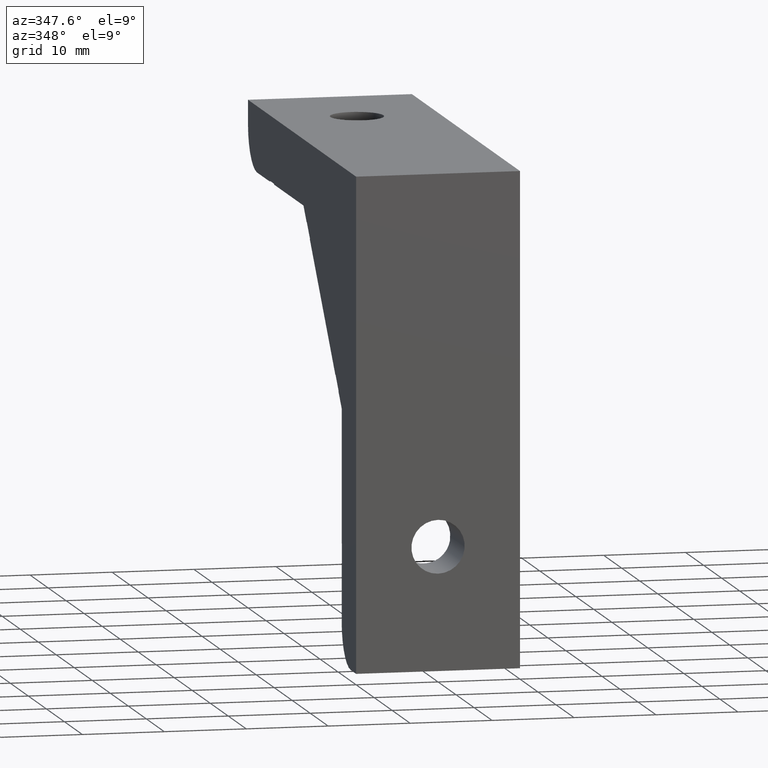
[diagram: clean part render]
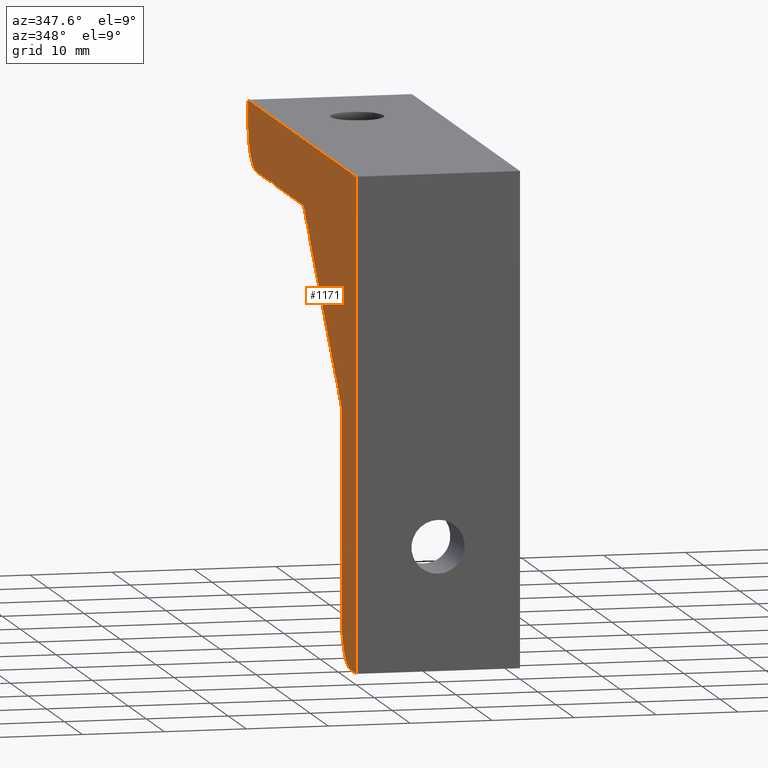
[diagram: same view with one face highlighted and labeled with its STEP entity id]
A machine part, auxiliary view. The second image highlights one B-rep face of the part: STEP entity #1171.
In plain terms, the highlighted planar face has unit normal (-1, 0, 0).
Its self-contained STEP definition (entity closure, byte-faithful):
#7 = CARTESIAN_POINT ( 'NONE',  ( 0.0000000000000000000, 9.732411614000000100, -27.41008114399999600 ) ) ;
#8 = DIRECTION ( 'NONE',  ( 0.0000000000000000000, 0.7071067811865735500, -0.7071067811865214800 ) ) ;
#29 = PLANE ( 'NONE',  #771 ) ;
#30 = CARTESIAN_POINT ( 'NONE',  ( 0.0000000000000000000, 0.0000000000000000000, -60.00000000000000000 ) ) ;
#31 = DIRECTION ( 'NONE',  ( -1.000000000000000000, 0.0000000000000000000, 0.0000000000000000000 ) ) ;
#32 = DIRECTION ( 'NONE',  ( 0.0000000000000000000, 0.0000000000000000000, 1.000000000000000000 ) ) ;
#127 = VECTOR ( 'NONE', #8, 1000.000000000000000 ) ;
#138 = FACE_OUTER_BOUND ( 'NONE', #541, .T. ) ;
#238 = CARTESIAN_POINT ( 'NONE',  ( 0.0000000000000000000, 7.950000000000000200, -45.50000000000000000 ) ) ;
#239 = DIRECTION ( 'NONE',  ( -0.0000000000000000000, -1.000000000000000000, -0.0000000000000000000 ) ) ;
#249 = CARTESIAN_POINT ( 'NONE',  ( 0.0000000000000000000, 30.00000000000000000, -7.999999979999996600 ) ) ;
#250 = DIRECTION ( 'NONE',  ( -0.0000000000000000000, -1.000000000000000000, -0.0000000000000000000 ) ) ;
#272 = CARTESIAN_POINT ( 'NONE',  ( 0.0000000000000000000, 27.41008114399999600, -9.732411614000000100 ) ) ;
#273 = DIRECTION ( 'NONE',  ( 0.0000000000000000000, -0.7071067811865214800, 0.7071067811865735500 ) ) ;
#280 = CARTESIAN_POINT ( 'NONE',  ( 0.0000000000000000000, 7.900000019999999300, -30.00000000000000000 ) ) ;
#281 = DIRECTION ( 'NONE',  ( -0.0000000000000000000, -0.0000000000000000000, -1.000000000000000000 ) ) ;
#286 = CARTESIAN_POINT ( 'NONE',  ( 0.0000000000000000000, 7.999999980000001900, -30.00000000000000000 ) ) ;
#287 = DIRECTION ( 'NONE',  ( -0.0000000000000000000, -0.0000000000000000000, -1.000000000000000000 ) ) ;
#290 = CARTESIAN_POINT ( 'NONE',  ( 3.469446951953614200E-015, 2.999999999999993300, -55.00000000000000000 ) ) ;
#291 = DIRECTION ( 'NONE',  ( -1.000000000000000000, -3.469446951953616700E-016, -0.0000000000000000000 ) ) ;
#292 = DIRECTION ( 'NONE',  ( 3.469446951953616200E-016, -1.000000000000000000, 0.0000000000000000000 ) ) ;
#300 = CARTESIAN_POINT ( 'NONE',  ( 0.0000000000000000000, 30.00000000000000000, -60.00000000000000000 ) ) ;
#301 = DIRECTION ( 'NONE',  ( -0.0000000000000000000, -1.000000000000000000, -0.0000000000000000000 ) ) ;
#304 = CARTESIAN_POINT ( 'NONE',  ( 3.469446951953614200E-015, 54.99999999999999300, -3.000000000000000000 ) ) ;
#305 = DIRECTION ( 'NONE',  ( -1.000000000000000000, -3.469446951953613700E-016, -0.0000000000000000000 ) ) ;
#306 = DIRECTION ( 'NONE',  ( 3.469446951953616200E-016, -1.000000000000000000, 0.0000000000000000000 ) ) ;
#312 = CARTESIAN_POINT ( 'NONE',  ( 0.0000000000000000000, 27.37472579999999700, -9.697056300000007000 ) ) ;
#313 = DIRECTION ( 'NONE',  ( 0.0000000000000000000, -0.7071067811865495700, -0.7071067811865454600 ) ) ;
#318 = CARTESIAN_POINT ( 'NONE',  ( 0.0000000000000000000, 25.67766954000000000, -11.53553387999999000 ) ) ;
#319 = DIRECTION ( 'NONE',  ( 0.0000000000000000000, -0.7071067811865473500, -0.7071067811865477900 ) ) ;
#320 = CARTESIAN_POINT ( 'NONE',  ( 0.0000000000000000000, 11.46482322000000100, -25.60695888000000400 ) ) ;
#321 = DIRECTION ( 'NONE',  ( 0.0000000000000000000, -0.7071067811865482400, -0.7071067811865469100 ) ) ;
#332 = CARTESIAN_POINT ( 'NONE',  ( 0.0000000000000000000, 7.950000000000000200, -48.00000000000000000 ) ) ;
#333 = DIRECTION ( 'NONE',  ( 0.0000000000000000000, 1.000000000000000000, 0.0000000000000000000 ) ) ;
#338 = CARTESIAN_POINT ( 'NONE',  ( 0.0000000000000000000, 25.64231419100000100, -11.50017856700000100 ) ) ;
#339 = DIRECTION ( 'NONE',  ( 0.0000000000000000000, 0.7071067811865128200, -0.7071067811865822100 ) ) ;
#346 = CARTESIAN_POINT ( 'NONE',  ( 0.0000000000000000000, 11.50017856700000100, -25.64231419100000100 ) ) ;
#347 = DIRECTION ( 'NONE',  ( 0.0000000000000000000, -0.7071067811865822100, 0.7071067811865128200 ) ) ;
#350 = CARTESIAN_POINT ( 'NONE',  ( 0.0000000000000000000, 60.00000000000000000, -30.00000000000000000 ) ) ;
#351 = DIRECTION ( 'NONE',  ( -0.0000000000000000000, -0.0000000000000000000, -1.000000000000000000 ) ) ;
#360 = CARTESIAN_POINT ( 'NONE',  ( 0.0000000000000000000, 0.0000000000000000000, -30.00000000000000000 ) ) ;
#361 = DIRECTION ( 'NONE',  ( 0.0000000000000000000, 0.0000000000000000000, 1.000000000000000000 ) ) ;
#366 = CARTESIAN_POINT ( 'NONE',  ( 0.0000000000000000000, 29.21320344000000400, -7.999999979999998300 ) ) ;
#367 = DIRECTION ( 'NONE',  ( 0.0000000000000000000, -0.7071067811865474600, -0.7071067811865474600 ) ) ;
#382 = CARTESIAN_POINT ( 'NONE',  ( 0.0000000000000000000, 30.00000000000000000, 0.0000000000000000000 ) ) ;
#383 = DIRECTION ( 'NONE',  ( 0.0000000000000000000, 1.000000000000000000, 0.0000000000000000000 ) ) ;
#384 = CARTESIAN_POINT ( 'NONE',  ( 0.0000000000000000000, 48.00000000000000000, -7.950000000000000200 ) ) ;
#385 = DIRECTION ( 'NONE',  ( 0.0000000000000000000, 0.0000000000000000000, 1.000000000000000000 ) ) ;
#386 = CARTESIAN_POINT ( 'NONE',  ( 0.0000000000000000000, 46.75000000000000000, -7.900000000000000400 ) ) ;
#387 = DIRECTION ( 'NONE',  ( -0.0000000000000000000, -1.000000000000000000, -0.0000000000000000000 ) ) ;
#388 = CARTESIAN_POINT ( 'NONE',  ( 0.0000000000000000000, 45.50000000000000000, -7.950000000000000200 ) ) ;
#389 = DIRECTION ( 'NONE',  ( 0.0000000000000000000, 0.0000000000000000000, -1.000000000000000000 ) ) ;
#390 = CARTESIAN_POINT ( 'NONE',  ( 0.0000000000000000000, 37.35660171799999300, -8.000000000000000000 ) ) ;
#391 = DIRECTION ( 'NONE',  ( 0.0000000000000000000, -1.000000000000000000, 0.0000000000000000000 ) ) ;
#410 = CARTESIAN_POINT ( 'NONE',  ( 0.0000000000000000000, 9.767766960000001200, -27.44543646000000700 ) ) ;
#411 = DIRECTION ( 'NONE',  ( 0.0000000000000000000, -0.7071067811865500200, -0.7071067811865451300 ) ) ;
#416 = CARTESIAN_POINT ( 'NONE',  ( 0.0000000000000000000, 7.999999980000001900, -30.00000000000000000 ) ) ;
#417 = DIRECTION ( 'NONE',  ( -0.0000000000000000000, -0.0000000000000000000, -1.000000000000000000 ) ) ;
#422 = CARTESIAN_POINT ( 'NONE',  ( 0.0000000000000000000, 29.21320342800000300, -8.000000000000000000 ) ) ;
#423 = CARTESIAN_POINT ( 'NONE',  ( 0.0000000000000000000, 7.999999987999999900, -29.21320343599999700 ) ) ;
#426 = CARTESIAN_POINT ( 'NONE',  ( 0.0000000000000000000, 9.767766949000003900, -27.44543647899999400 ) ) ;
#427 = CARTESIAN_POINT ( 'NONE',  ( 0.0000000000000000000, 11.53553390199999900, -25.67766952599999900 ) ) ;
#428 = CARTESIAN_POINT ( 'NONE',  ( 0.0000000000000000000, 7.999999993333334600, -45.50000000000000700 ) ) ;
#430 = CARTESIAN_POINT ( 'NONE',  ( 0.0000000000000000000, 0.0000000000000000000, -60.00000000000000000 ) ) ;
#436 = CARTESIAN_POINT ( 'NONE',  ( 0.0000000000000000000, 45.50000000000000700, -7.900000000000000400 ) ) ;
#438 = CARTESIAN_POINT ( 'NONE',  ( 0.0000000000000000000, 48.00000000000000700, -7.900000000000000400 ) ) ;
#440 = CARTESIAN_POINT ( 'NONE',  ( 0.0000000000000000000, 11.46482323300000100, -25.60695885700000600 ) ) ;
#443 = CARTESIAN_POINT ( 'NONE',  ( 0.0000000000000000000, 60.00000000000000000, 0.0000000000000000000 ) ) ;
#456 = CARTESIAN_POINT ( 'NONE',  ( 0.0000000000000000000, 27.37472581000000100, -9.697056280000001700 ) ) ;
#457 = CARTESIAN_POINT ( 'NONE',  ( 8.673617379884035500E-016, 60.00000000000000000, -3.000000000000000000 ) ) ;
#458 = CARTESIAN_POINT ( 'NONE',  ( 3.469446951953614200E-015, 54.99999999999999300, -7.999999989999999200 ) ) ;
#462 = CARTESIAN_POINT ( 'NONE',  ( 0.0000000000000000000, 25.67766952599999500, -11.53553390199999900 ) ) ;
#465 = CARTESIAN_POINT ( 'NONE',  ( 0.0000000000000000000, 7.900000006666666700, -45.49999999777778500 ) ) ;
#467 = CARTESIAN_POINT ( 'NONE',  ( 1.734723479446252100E-015, 7.999999990000000900, -55.00000000051275600 ) ) ;
#472 = CARTESIAN_POINT ( 'NONE',  ( 0.0000000000000000000, 7.999999993333334600, -48.00000000000000700 ) ) ;
#473 = CARTESIAN_POINT ( 'NONE',  ( 0.0000000000000000000, 9.697056280000001700, -27.37472581000000100 ) ) ;
#478 = CARTESIAN_POINT ( 'NONE',  ( 0.0000000000000000000, 27.44543647899999400, -9.767766949000003900 ) ) ;
#480 = CARTESIAN_POINT ( 'NONE',  ( 0.0000000000000000000, 0.0000000000000000000, 0.0000000000000000000 ) ) ;
#481 = CARTESIAN_POINT ( 'NONE',  ( 0.0000000000000000000, 45.50000000000000700, -8.000000000000000000 ) ) ;
#482 = CARTESIAN_POINT ( 'NONE',  ( 0.0000000000000000000, 7.900000006666666700, -48.00000000000000700 ) ) ;
#484 = CARTESIAN_POINT ( 'NONE',  ( 0.0000000000000000000, 25.60695885700000200, -11.46482323299999700 ) ) ;
#488 = CARTESIAN_POINT ( 'NONE',  ( 1.734723475976807100E-015, 2.999999999999996400, -60.00000000000000000 ) ) ;
#492 = CARTESIAN_POINT ( 'NONE',  ( 0.0000000000000000000, 48.00000000000000700, -7.999999993333332800 ) ) ;
#541 = EDGE_LOOP ( 'NONE', ( #570, #572, #573, #574, #576, #577, #578, #579, #580, #591, #590, #592, #593, #594, #595, #596, #597, #598, #599, #600, #601, #602, #603, #687, #686 ) ) ;
#570 = ORIENTED_EDGE ( 'NONE', *, *, #856, .T. ) ;
#572 = ORIENTED_EDGE ( 'NONE', *, *, #859, .T. ) ;
#573 = ORIENTED_EDGE ( 'NONE', *, *, #715, .T. ) ;
#574 = ORIENTED_EDGE ( 'NONE', *, *, #794, .T. ) ;
#576 = ORIENTED_EDGE ( 'NONE', *, *, #818, .T. ) ;
#577 = ORIENTED_EDGE ( 'NONE', *, *, #797, .T. ) ;
#578 = ORIENTED_EDGE ( 'NONE', *, *, #799, .T. ) ;
#579 = ORIENTED_EDGE ( 'NONE', *, *, #803, .T. ) ;
#580 = ORIENTED_EDGE ( 'NONE', *, *, #832, .T. ) ;
#590 = ORIENTED_EDGE ( 'NONE', *, *, #827, .T. ) ;
#591 = ORIENTED_EDGE ( 'NONE', *, *, #843, .T. ) ;
#592 = ORIENTED_EDGE ( 'NONE', *, *, #805, .T. ) ;
#593 = ORIENTED_EDGE ( 'NONE', *, *, #720, .T. ) ;
#594 = ORIENTED_EDGE ( 'NONE', *, *, #844, .T. ) ;
#595 = ORIENTED_EDGE ( 'NONE', *, *, #845, .T. ) ;
#596 = ORIENTED_EDGE ( 'NONE', *, *, #846, .T. ) ;
#597 = ORIENTED_EDGE ( 'NONE', *, *, #847, .T. ) ;
#598 = ORIENTED_EDGE ( 'NONE', *, *, #835, .T. ) ;
#599 = ORIENTED_EDGE ( 'NONE', *, *, #790, .T. ) ;
#600 = ORIENTED_EDGE ( 'NONE', *, *, #808, .T. ) ;
#601 = ORIENTED_EDGE ( 'NONE', *, *, #821, .T. ) ;
#602 = ORIENTED_EDGE ( 'NONE', *, *, #811, .T. ) ;
#603 = ORIENTED_EDGE ( 'NONE', *, *, #825, .T. ) ;
#686 = ORIENTED_EDGE ( 'NONE', *, *, #1013, .T. ) ;
#687 = ORIENTED_EDGE ( 'NONE', *, *, #812, .T. ) ;
#715 = EDGE_CURVE ( 'NONE', #891, #968, #1313, .T. ) ;
#720 = EDGE_CURVE ( 'NONE', #961, #995, #1327, .T. ) ;
#753 = AXIS2_PLACEMENT_3D ( 'NONE', #290, #291, #292 ) ;
#755 = AXIS2_PLACEMENT_3D ( 'NONE', #304, #305, #306 ) ;
#771 = AXIS2_PLACEMENT_3D ( 'NONE', #30, #31, #32 ) ;
#790 = EDGE_CURVE ( 'NONE', #981, #959, #1295, .T. ) ;
#794 = EDGE_CURVE ( 'NONE', #968, #985, #1263, .T. ) ;
#797 = EDGE_CURVE ( 'NONE', #975, #970, #1118, .T. ) ;
#799 = EDGE_CURVE ( 'NONE', #970, #991, #1017, .T. ) ;
#803 = EDGE_CURVE ( 'NONE', #991, #894, #1140, .T. ) ;
#805 = EDGE_CURVE ( 'NONE', #960, #961, #1125, .T. ) ;
#808 = EDGE_CURVE ( 'NONE', #959, #987, #1116, .T. ) ;
#811 = EDGE_CURVE ( 'NONE', #965, #890, #1102, .T. ) ;
#812 = EDGE_CURVE ( 'NONE', #943, #976, #1096, .T. ) ;
#818 = EDGE_CURVE ( 'NONE', #985, #975, #1163, .T. ) ;
#821 = EDGE_CURVE ( 'NONE', #987, #965, #1157, .T. ) ;
#825 = EDGE_CURVE ( 'NONE', #890, #943, #1147, .T. ) ;
#827 = EDGE_CURVE ( 'NONE', #946, #960, #1141, .T. ) ;
#832 = EDGE_CURVE ( 'NONE', #894, #983, #1128, .T. ) ;
#835 = EDGE_CURVE ( 'NONE', #882, #981, #1126, .T. ) ;
#843 = EDGE_CURVE ( 'NONE', #983, #946, #1107, .T. ) ;
#844 = EDGE_CURVE ( 'NONE', #995, #941, #1097, .T. ) ;
#845 = EDGE_CURVE ( 'NONE', #941, #939, #1099, .T. ) ;
#846 = EDGE_CURVE ( 'NONE', #939, #984, #1093, .T. ) ;
#847 = EDGE_CURVE ( 'NONE', #984, #882, #1043, .T. ) ;
#856 = EDGE_CURVE ( 'NONE', #889, #884, #1032, .T. ) ;
#859 = EDGE_CURVE ( 'NONE', #884, #891, #1071, .T. ) ;
#882 = VERTEX_POINT ( 'NONE', #422 ) ;
#884 = VERTEX_POINT ( 'NONE', #423 ) ;
#889 = VERTEX_POINT ( 'NONE', #426 ) ;
#890 = VERTEX_POINT ( 'NONE', #427 ) ;
#891 = VERTEX_POINT ( 'NONE', #428 ) ;
#894 = VERTEX_POINT ( 'NONE', #430 ) ;
#939 = VERTEX_POINT ( 'NONE', #436 ) ;
#941 = VERTEX_POINT ( 'NONE', #438 ) ;
#943 = VERTEX_POINT ( 'NONE', #440 ) ;
#946 = VERTEX_POINT ( 'NONE', #443 ) ;
#959 = VERTEX_POINT ( 'NONE', #456 ) ;
#960 = VERTEX_POINT ( 'NONE', #457 ) ;
#961 = VERTEX_POINT ( 'NONE', #458 ) ;
#965 = VERTEX_POINT ( 'NONE', #462 ) ;
#968 = VERTEX_POINT ( 'NONE', #465 ) ;
#970 = VERTEX_POINT ( 'NONE', #467 ) ;
#975 = VERTEX_POINT ( 'NONE', #472 ) ;
#976 = VERTEX_POINT ( 'NONE', #473 ) ;
#981 = VERTEX_POINT ( 'NONE', #478 ) ;
#983 = VERTEX_POINT ( 'NONE', #480 ) ;
#984 = VERTEX_POINT ( 'NONE', #481 ) ;
#985 = VERTEX_POINT ( 'NONE', #482 ) ;
#987 = VERTEX_POINT ( 'NONE', #484 ) ;
#991 = VERTEX_POINT ( 'NONE', #488 ) ;
#995 = VERTEX_POINT ( 'NONE', #492 ) ;
#1013 = EDGE_CURVE ( 'NONE', #976, #889, #1044, .T. ) ;
#1017 = CIRCLE ( 'NONE', #753, 4.999999999999997300 ) ;
#1023 = VECTOR ( 'NONE', #367, 1000.000000000000100 ) ;
#1032 = LINE ( 'NONE', #410, #1075 ) ;
#1033 = VECTOR ( 'NONE', #389, 1000.000000000000000 ) ;
#1034 = VECTOR ( 'NONE', #391, 1000.000000000000000 ) ;
#1043 = LINE ( 'NONE', #390, #1034 ) ;
#1044 = LINE ( 'NONE', #7, #127 ) ;
#1070 = VECTOR ( 'NONE', #417, 1000.000000000000000 ) ;
#1071 = LINE ( 'NONE', #416, #1070 ) ;
#1075 = VECTOR ( 'NONE', #411, 1000.000000000000100 ) ;
#1081 = VECTOR ( 'NONE', #281, 1000.000000000000000 ) ;
#1091 = VECTOR ( 'NONE', #387, 1000.000000000000000 ) ;
#1093 = LINE ( 'NONE', #388, #1033 ) ;
#1094 = VECTOR ( 'NONE', #321, 1000.000000000000000 ) ;
#1095 = VECTOR ( 'NONE', #383, 1000.000000000000000 ) ;
#1096 = LINE ( 'NONE', #320, #1094 ) ;
#1097 = LINE ( 'NONE', #384, #1098 ) ;
#1098 = VECTOR ( 'NONE', #385, 1000.000000000000000 ) ;
#1099 = LINE ( 'NONE', #386, #1091 ) ;
#1100 = VECTOR ( 'NONE', #319, 1000.000000000000000 ) ;
#1102 = LINE ( 'NONE', #318, #1100 ) ;
#1107 = LINE ( 'NONE', #382, #1095 ) ;
#1112 = VECTOR ( 'NONE', #313, 1000.000000000000000 ) ;
#1116 = LINE ( 'NONE', #312, #1112 ) ;
#1118 = LINE ( 'NONE', #286, #1121 ) ;
#1119 = VECTOR ( 'NONE', #361, 1000.000000000000000 ) ;
#1121 = VECTOR ( 'NONE', #287, 1000.000000000000000 ) ;
#1125 = CIRCLE ( 'NONE', #755, 4.999999999999997300 ) ;
#1126 = LINE ( 'NONE', #366, #1023 ) ;
#1128 = LINE ( 'NONE', #360, #1119 ) ;
#1138 = VECTOR ( 'NONE', #301, 1000.000000000000000 ) ;
#1139 = VECTOR ( 'NONE', #351, 1000.000000000000000 ) ;
#1140 = LINE ( 'NONE', #300, #1138 ) ;
#1141 = LINE ( 'NONE', #350, #1139 ) ;
#1145 = VECTOR ( 'NONE', #347, 1000.000000000000200 ) ;
#1147 = LINE ( 'NONE', #346, #1145 ) ;
#1156 = VECTOR ( 'NONE', #339, 1000.000000000000200 ) ;
#1157 = LINE ( 'NONE', #338, #1156 ) ;
#1162 = VECTOR ( 'NONE', #333, 1000.000000000000000 ) ;
#1163 = LINE ( 'NONE', #332, #1162 ) ;
#1171 = ADVANCED_FACE ( 'NONE', ( #138 ), #29, .T. ) ;
#1263 = LINE ( 'NONE', #280, #1081 ) ;
#1295 = LINE ( 'NONE', #272, #1297 ) ;
#1297 = VECTOR ( 'NONE', #273, 1000.000000000000000 ) ;
#1313 = LINE ( 'NONE', #238, #1314 ) ;
#1314 = VECTOR ( 'NONE', #239, 1000.000000000000000 ) ;
#1327 = LINE ( 'NONE', #249, #1328 ) ;
#1328 = VECTOR ( 'NONE', #250, 1000.000000000000000 ) ;